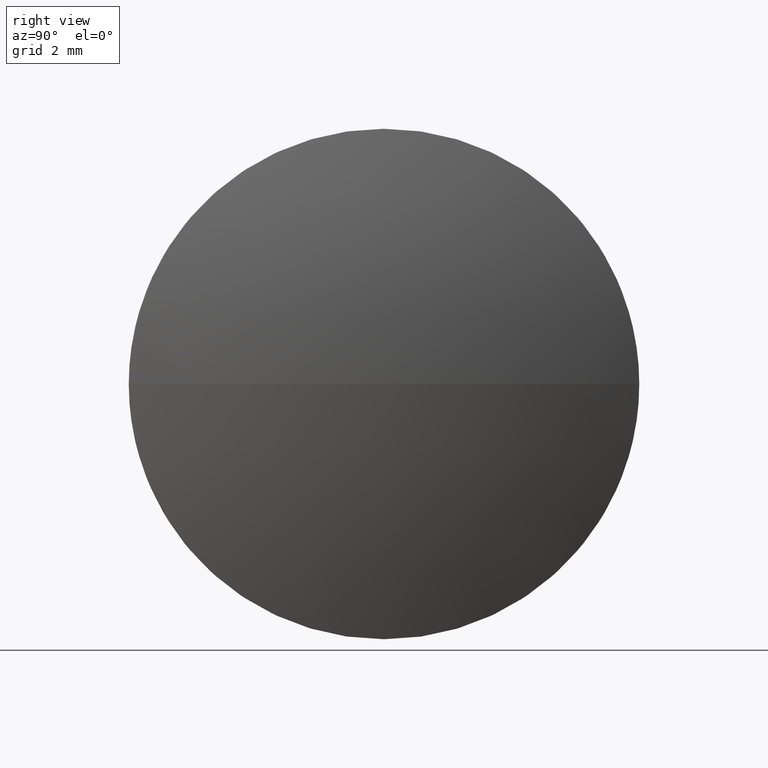
[diagram: clean part render]
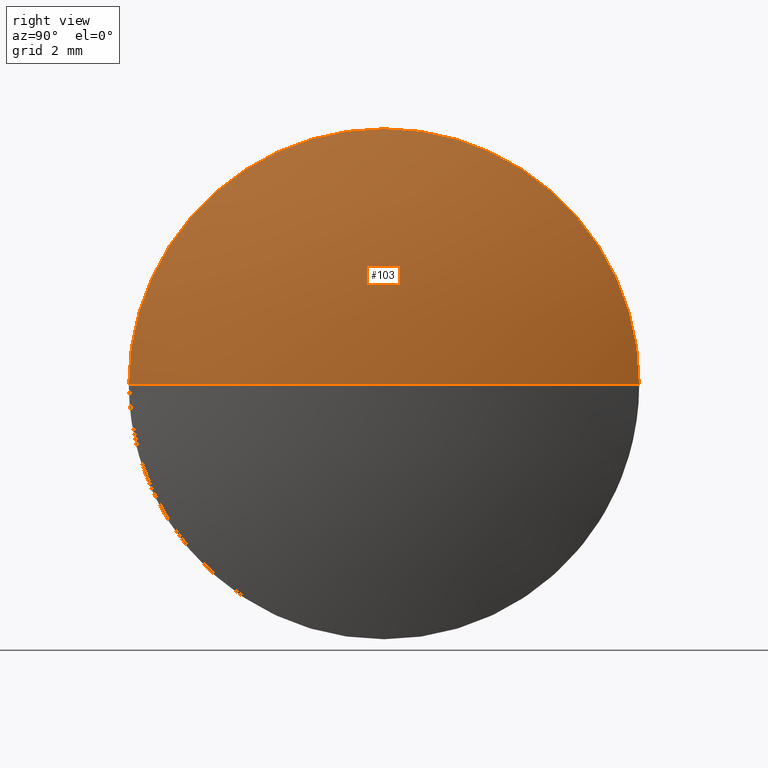
[diagram: same view with one face highlighted and labeled with its STEP entity id]
A machine part, right view. The second image highlights one B-rep face of the part: STEP entity #103.
In plain terms, the highlighted spherical surface has radius 16.2178 mm.
Its self-contained STEP definition (entity closure, byte-faithful):
#3 = VERTEX_POINT ( 'NONE', #161 ) ;
#5 = CARTESIAN_POINT ( 'NONE',  ( 448.1260620290427700, 82.52816574681480700, 0.0000000000000000000 ) ) ;
#23 = EDGE_CURVE ( 'NONE', #111, #55, #157, .T. ) ;
#24 = VERTEX_POINT ( 'NONE', #121 ) ;
#29 = AXIS2_PLACEMENT_3D ( 'NONE', #48, #61, #36 ) ;
#31 = CARTESIAN_POINT ( 'NONE',  ( 432.6982772189161900, 82.52816574681475000, 0.0000000000000000000 ) ) ;
#36 = DIRECTION ( 'NONE',  ( 0.0000000000000000000, 0.0000000000000000000, 1.000000000000000000 ) ) ;
#37 = FACE_OUTER_BOUND ( 'NONE', #148, .T. ) ;
#38 = CIRCLE ( 'NONE', #29, 5.000000000000004400 ) ;
#45 = EDGE_CURVE ( 'NONE', #3, #111, #53, .T. ) ;
#48 = CARTESIAN_POINT ( 'NONE',  ( 448.1260620290427700, 82.52816574681480700, 0.0000000000000000000 ) ) ;
#49 = DIRECTION ( 'NONE',  ( 1.000000000000000000, 0.0000000000000000000, 0.0000000000000000000 ) ) ;
#53 = CIRCLE ( 'NONE', #84, 16.21778481012658800 ) ;
#55 = VERTEX_POINT ( 'NONE', #59 ) ;
#59 = CARTESIAN_POINT ( 'NONE',  ( 448.1260620290427700, 82.52816574681480700, 5.000000000000004400 ) ) ;
#61 = DIRECTION ( 'NONE',  ( -1.000000000000000000, -0.0000000000000000000, -0.0000000000000000000 ) ) ;
#69 = ORIENTED_EDGE ( 'NONE', *, *, #70, .T. ) ;
#70 = EDGE_CURVE ( 'NONE', #3, #24, #128, .T. ) ;
#71 = DIRECTION ( 'NONE',  ( 0.0000000000000000000, 1.000000000000000000, 1.224646799147353500E-016 ) ) ;
#84 = AXIS2_PLACEMENT_3D ( 'NONE', #31, #151, #71 ) ;
#85 = ORIENTED_EDGE ( 'NONE', *, *, #174, .F. ) ;
#93 = DIRECTION ( 'NONE',  ( -0.0000000000000000000, 0.0000000000000000000, 1.000000000000000000 ) ) ;
#99 = ORIENTED_EDGE ( 'NONE', *, *, #23, .F. ) ;
#100 = AXIS2_PLACEMENT_3D ( 'NONE', #5, #108, #177 ) ;
#103 = ADVANCED_FACE ( 'NONE', ( #37 ), #131, .T. ) ;
#108 = DIRECTION ( 'NONE',  ( -1.000000000000000000, -0.0000000000000000000, -0.0000000000000000000 ) ) ;
#111 = VERTEX_POINT ( 'NONE', #179 ) ;
#112 = CARTESIAN_POINT ( 'NONE',  ( 432.6982772189161900, 82.52816574681475000, 0.0000000000000000000 ) ) ;
#114 = AXIS2_PLACEMENT_3D ( 'NONE', #166, #93, #49 ) ;
#121 = CARTESIAN_POINT ( 'NONE',  ( 448.1260620290427700, 87.52816574681479300, 0.0000000000000000000 ) ) ;
#128 = CIRCLE ( 'NONE', #114, 16.21778481012658800 ) ;
#131 = SPHERICAL_SURFACE ( 'NONE', #180, 16.21778481012659200 ) ;
#139 = DIRECTION ( 'NONE',  ( -0.0000000000000000000, 0.0000000000000000000, -1.000000000000000000 ) ) ;
#143 = ORIENTED_EDGE ( 'NONE', *, *, #45, .F. ) ;
#148 = EDGE_LOOP ( 'NONE', ( #143, #69, #85, #99 ) ) ;
#151 = DIRECTION ( 'NONE',  ( 0.0000000000000000000, 1.224646799147353200E-016, -1.000000000000000000 ) ) ;
#157 = CIRCLE ( 'NONE', #100, 5.000000000000004400 ) ;
#161 = CARTESIAN_POINT ( 'NONE',  ( 448.9160620290427900, 82.52816574681475000, 0.0000000000000000000 ) ) ;
#166 = CARTESIAN_POINT ( 'NONE',  ( 432.6982772189161900, 82.52816574681475000, 0.0000000000000000000 ) ) ;
#174 = EDGE_CURVE ( 'NONE', #55, #24, #38, .T. ) ;
#177 = DIRECTION ( 'NONE',  ( 0.0000000000000000000, 0.0000000000000000000, 1.000000000000000000 ) ) ;
#179 = CARTESIAN_POINT ( 'NONE',  ( 448.1260620290427700, 77.52816574681476400, -6.123233995736768300E-016 ) ) ;
#180 = AXIS2_PLACEMENT_3D ( 'NONE', #112, #139, #183 ) ;
#183 = DIRECTION ( 'NONE',  ( 0.0000000000000000000, 1.000000000000000000, 0.0000000000000000000 ) ) ;